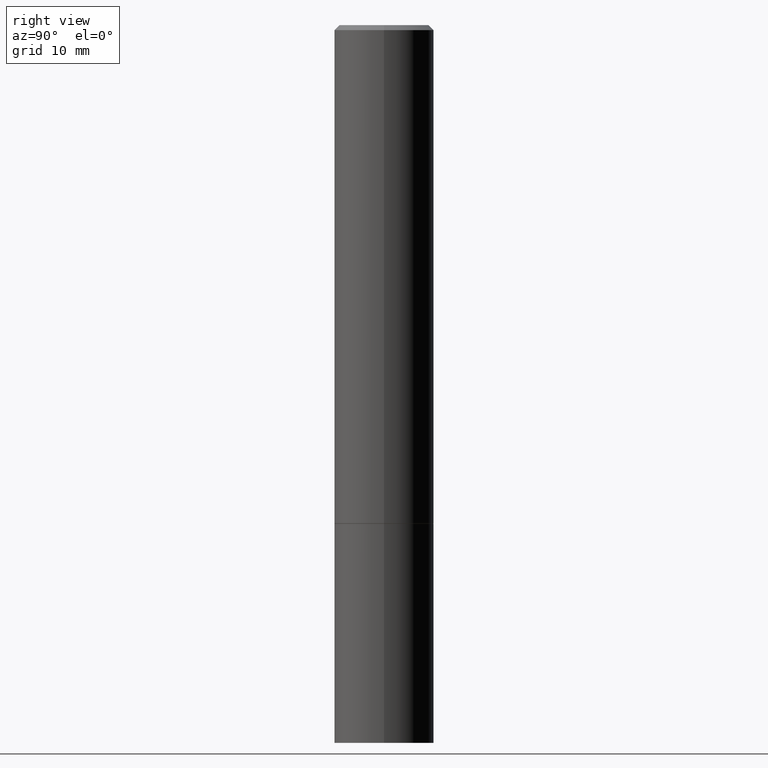
[diagram: clean part render]
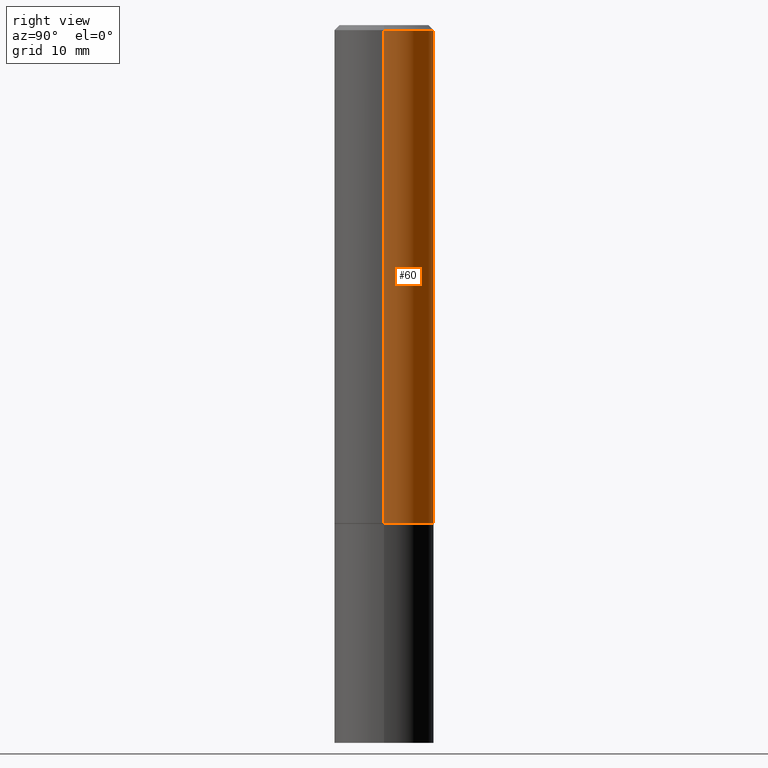
[diagram: same view with one face highlighted and labeled with its STEP entity id]
A machine part, right view. The second image highlights one B-rep face of the part: STEP entity #60.
In plain terms, the highlighted cylindrical surface (partial cylindrical patch) has radius 5 mm, axis along (-0, 0, 1).
Its self-contained STEP definition (entity closure, byte-faithful):
#27 = VECTOR ( 'NONE', #209, 39.37007874015748143 ) ;
#28 = EDGE_LOOP ( 'NONE', ( #360, #128, #174, #199 ) ) ;
#45 = CIRCLE ( 'NONE', #256, 0.1968499999999997752 ) ;
#49 = CYLINDRICAL_SURFACE ( 'NONE', #206, 0.1968499999999999139 ) ;
#54 = DIRECTION ( 'NONE',  ( -2.445468806185136877E-29, 3.491481338843145188E-15, 1.000000000000000000 ) ) ;
#57 = CARTESIAN_POINT ( 'NONE',  ( 0.1968499999999997752, -1.420318657638187544E-15, -0.02000000000000004205 ) ) ;
#60 = ADVANCED_FACE ( 'NONE', ( #191 ), #49, .T. ) ;
#63 = AXIS2_PLACEMENT_3D ( 'NONE', #347, #175, #301 ) ;
#110 = VERTEX_POINT ( 'NONE', #364 ) ;
#115 = VERTEX_POINT ( 'NONE', #225 ) ;
#126 = EDGE_CURVE ( 'NONE', #110, #115, #227, .T. ) ;
#128 = ORIENTED_EDGE ( 'NONE', *, *, #147, .T. ) ;
#147 = EDGE_CURVE ( 'NONE', #115, #306, #325, .T. ) ;
#163 = CARTESIAN_POINT ( 'NONE',  ( 0.000000000000000000, 0.000000000000000000, 0.000000000000000000 ) ) ;
#169 = EDGE_CURVE ( 'NONE', #323, #306, #45, .T. ) ;
#174 = ORIENTED_EDGE ( 'NONE', *, *, #169, .F. ) ;
#175 = DIRECTION ( 'NONE',  ( -2.445468806185136597E-29, 3.491481338843145583E-15, 1.000000000000000000 ) ) ;
#181 = DIRECTION ( 'NONE',  ( -2.445468806185136597E-29, 3.491481338843145583E-15, 1.000000000000000000 ) ) ;
#188 = CARTESIAN_POINT ( 'NONE',  ( 4.890937612370283668E-31, -6.982962677686305168E-17, -0.02000000000000004205 ) ) ;
#191 = FACE_OUTER_BOUND ( 'NONE', #28, .T. ) ;
#196 = CARTESIAN_POINT ( 'NONE',  ( 0.1968499999999999139, -1.374596203102541017E-15, 9.598753983154295253E-30 ) ) ;
#199 = ORIENTED_EDGE ( 'NONE', *, *, #310, .F. ) ;
#206 = AXIS2_PLACEMENT_3D ( 'NONE', #163, #309, #272 ) ;
#209 = DIRECTION ( 'NONE',  ( -2.445468806185136877E-29, 3.491481338843145188E-15, 1.000000000000000000 ) ) ;
#215 = LINE ( 'NONE', #196, #326 ) ;
#225 = CARTESIAN_POINT ( 'NONE',  ( -0.1968500000000000250, -2.070956205131617817E-15, -1.967500000000000027 ) ) ;
#227 = CIRCLE ( 'NONE', #63, 0.1968500000000000250 ) ;
#245 = CARTESIAN_POINT ( 'NONE',  ( -0.1968499999999997752, 1.304766576325676930E-15, -0.02000000000000004205 ) ) ;
#256 = AXIS2_PLACEMENT_3D ( 'NONE', #188, #181, #268 ) ;
#268 = DIRECTION ( 'NONE',  ( 1.000000000000000000, -6.982962677686266711E-15, 0.000000000000000000 ) ) ;
#272 = DIRECTION ( 'NONE',  ( 1.000000000000000000, -6.982962677686266711E-15, 4.876176775795935793E-29 ) ) ;
#301 = DIRECTION ( 'NONE',  ( 1.000000000000000000, -6.982962677686267499E-15, 0.000000000000000000 ) ) ;
#306 = VERTEX_POINT ( 'NONE', #245 ) ;
#309 = DIRECTION ( 'NONE',  ( -2.445468806185136597E-29, 3.491481338843145583E-15, 1.000000000000000000 ) ) ;
#310 = EDGE_CURVE ( 'NONE', #110, #323, #215, .T. ) ;
#319 = CARTESIAN_POINT ( 'NONE',  ( -0.1968499999999999139, 1.398703375343756604E-15, -9.682923725166778072E-30 ) ) ;
#323 = VERTEX_POINT ( 'NONE', #57 ) ;
#325 = LINE ( 'NONE', #319, #27 ) ;
#326 = VECTOR ( 'NONE', #54, 39.37007874015748143 ) ;
#347 = CARTESIAN_POINT ( 'NONE',  ( 4.811459876169256232E-29, -6.869489534173888700E-15, -1.967500000000000027 ) ) ;
#360 = ORIENTED_EDGE ( 'NONE', *, *, #126, .T. ) ;
#364 = CARTESIAN_POINT ( 'NONE',  ( 0.1968500000000000250, -8.244085737276430308E-15, -1.967500000000000027 ) ) ;